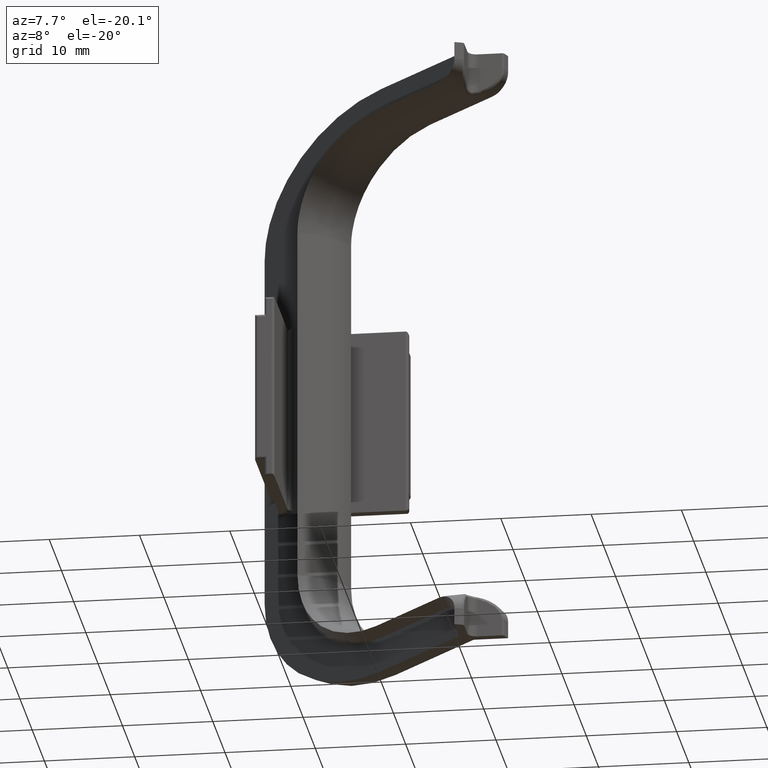
[diagram: clean part render]
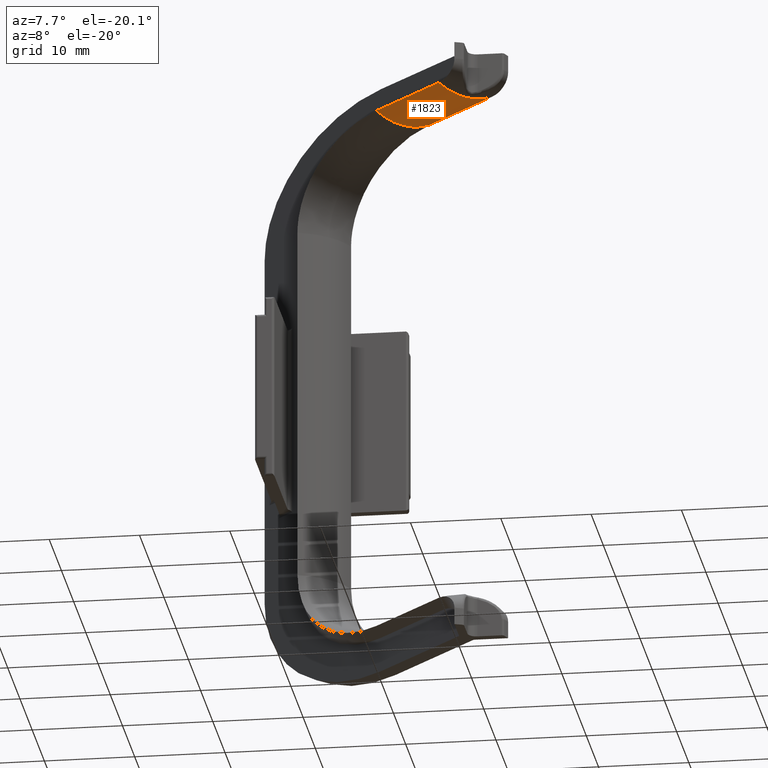
[diagram: same view with one face highlighted and labeled with its STEP entity id]
A machine part, auxiliary view. The second image highlights one B-rep face of the part: STEP entity #1823.
In plain terms, the highlighted cylindrical surface (partial cylindrical patch) has radius 8 mm, axis along (-0.7071, 0.7071, 0).
Its self-contained STEP definition (entity closure, byte-faithful):
#250=FACE_OUTER_BOUND('',#358,.T.);
#358=EDGE_LOOP('',(#1607,#1608,#1609,#1610,#1611,#1612));
#495=LINE('',#3443,#640);
#499=LINE('',#3454,#644);
#640=VECTOR('',#2480,10.);
#644=VECTOR('',#2492,10.);
#671=CIRCLE('',#1873,8.);
#687=CIRCLE('',#1903,8.);
#694=CIRCLE('',#2027,8.);
#695=CIRCLE('',#2028,8.);
#726=VERTEX_POINT('',#2785);
#727=VERTEX_POINT('',#2790);
#757=VERTEX_POINT('',#3092);
#850=VERTEX_POINT('',#3431);
#854=VERTEX_POINT('',#3453);
#864=VERTEX_POINT('',#3498);
#902=EDGE_CURVE('',#726,#727,#671,.T.);
#948=EDGE_CURVE('',#757,#726,#687,.T.);
#1101=EDGE_CURVE('',#727,#850,#495,.T.);
#1106=EDGE_CURVE('',#757,#854,#499,.T.);
#1123=EDGE_CURVE('',#854,#864,#694,.T.);
#1124=EDGE_CURVE('',#850,#864,#695,.T.);
#1607=ORIENTED_EDGE('',*,*,#1106,.T.);
#1608=ORIENTED_EDGE('',*,*,#1123,.T.);
#1609=ORIENTED_EDGE('',*,*,#1124,.F.);
#1610=ORIENTED_EDGE('',*,*,#1101,.F.);
#1611=ORIENTED_EDGE('',*,*,#902,.F.);
#1612=ORIENTED_EDGE('',*,*,#948,.F.);
#1724=CYLINDRICAL_SURFACE('',#2026,8.);
#1823=ADVANCED_FACE('',(#250),#1724,.T.);
#1873=AXIS2_PLACEMENT_3D('',#2791,#2088,#2089);
#1903=AXIS2_PLACEMENT_3D('',#3094,#2164,#2165);
#2026=AXIS2_PLACEMENT_3D('',#3497,#2522,#2523);
#2027=AXIS2_PLACEMENT_3D('',#3499,#2524,#2525);
#2028=AXIS2_PLACEMENT_3D('',#3500,#2526,#2527);
#2088=DIRECTION('center_axis',(0.707106781186548,-0.707106781186547,-1.83629622857365E-16));
#2089=DIRECTION('ref_axis',(-0.327036886298778,-0.327036886298778,-0.886619281315267));
#2164=DIRECTION('center_axis',(0.707106781186548,-0.707106781186547,-1.83629622857365E-16));
#2165=DIRECTION('ref_axis',(-0.327036886298778,-0.327036886298778,-0.886619281315267));
#2480=DIRECTION('',(-0.707106781186548,0.707106781186547,1.57009245868378E-15));
#2492=DIRECTION('',(-0.707106781186548,0.707106781186547,1.57009245868378E-15));
#2522=DIRECTION('center_axis',(-0.707106781186548,0.707106781186547,1.57009245868378E-15));
#2523=DIRECTION('ref_axis',(-0.327036886298779,-0.327036886298777,-0.886619281315267));
#2524=DIRECTION('center_axis',(0.707106781186548,-0.707106781186547,-1.83629622857365E-16));
#2525=DIRECTION('ref_axis',(-0.327036886298778,-0.327036886298778,-0.886619281315267));
#2526=DIRECTION('center_axis',(-0.707106781186548,0.707106781186547,1.83629622857365E-16));
#2527=DIRECTION('ref_axis',(0.327036886298778,0.327036886298778,-0.886619281315267));
#2785=CARTESIAN_POINT('',(20.6162950903902,30.6162950903902,29.1929542505221));
#2790=CARTESIAN_POINT('',(23.2325901807805,33.2325901807805,30.1));
#2791=CARTESIAN_POINT('Origin',(20.6162950903902,30.6162950903902,37.1929542505221));
#3092=CARTESIAN_POINT('',(18.,28.,30.1));
#3094=CARTESIAN_POINT('Origin',(20.6162950903902,30.6162950903902,37.1929542505221));
#3431=CARTESIAN_POINT('',(15.2325901807805,41.2325901807804,30.1));
#3443=CARTESIAN_POINT('',(23.2325901807805,33.2325901807805,30.1));
#3453=CARTESIAN_POINT('',(10.,36.,30.1));
#3454=CARTESIAN_POINT('',(18.,28.,30.1));
#3497=CARTESIAN_POINT('Origin',(20.6162950903902,30.6162950903902,37.1929542505221));
#3498=CARTESIAN_POINT('',(12.6162950903902,38.6162950903902,29.1929542505221));
#3499=CARTESIAN_POINT('Origin',(12.6162950903902,38.6162950903902,37.1929542505221));
#3500=CARTESIAN_POINT('Origin',(12.6162950903902,38.6162950903902,37.1929542505221));